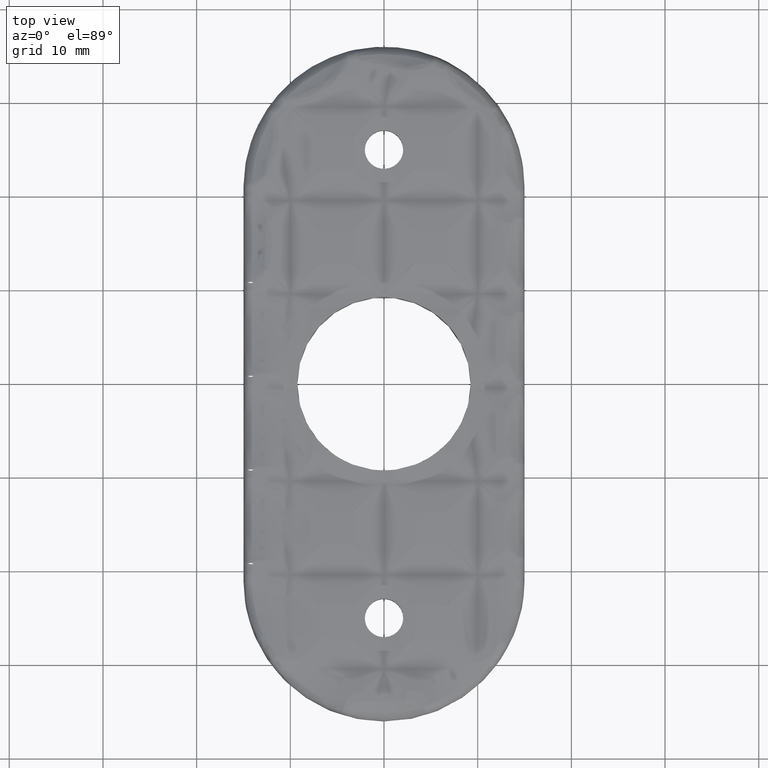
[diagram: clean part render]
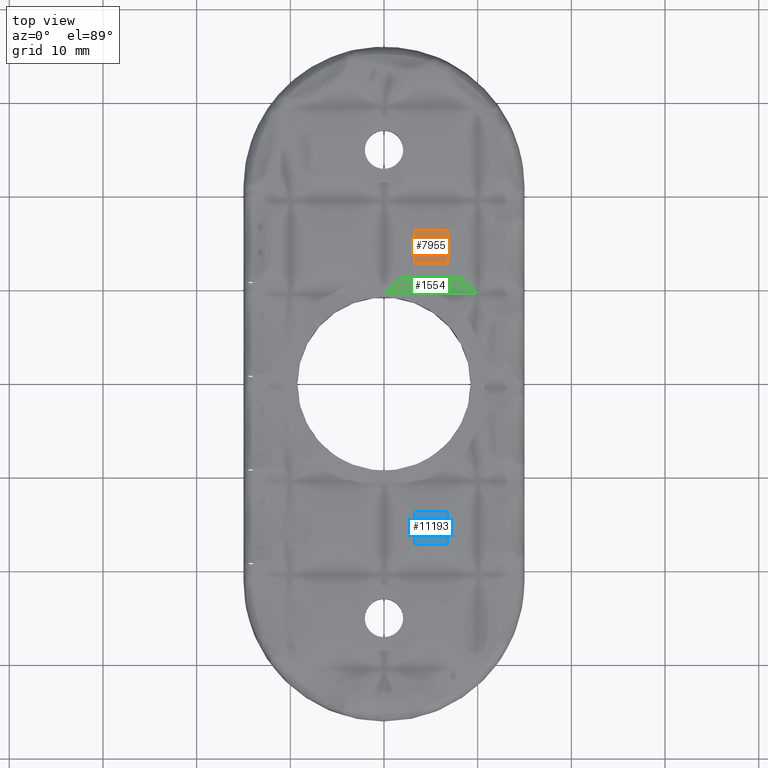
[diagram: same view with three faces highlighted in distinct colors, each labeled with its STEP entity id]
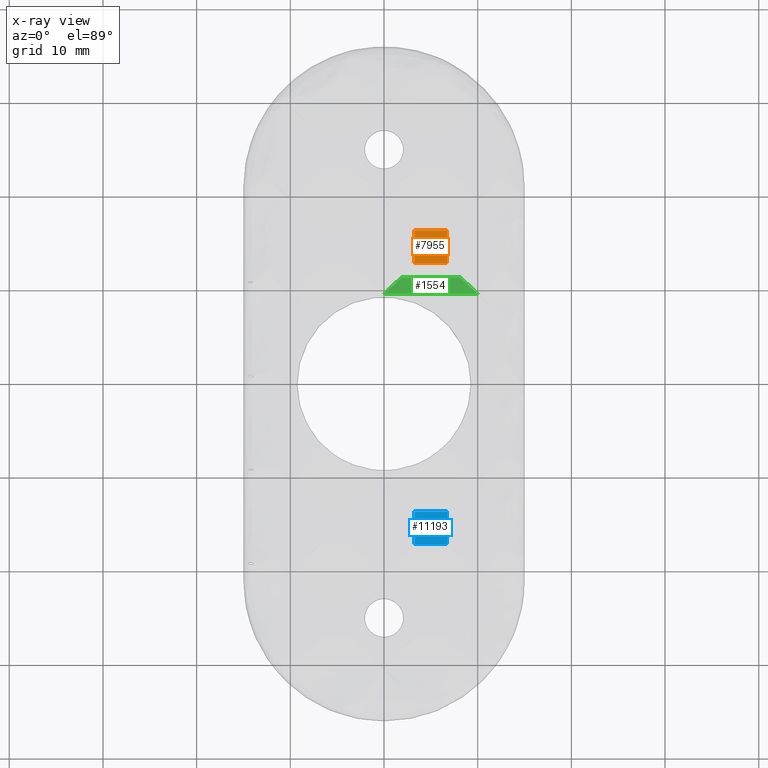
[diagram: x-ray of the same camera — body ghosted, the three highlighted faces saturated]
A machine part, top view with three faces highlighted in distinct colors.
The next image is the same camera in x-ray (body ghosted, the three faces saturated) — at least one of them is partly hidden behind the body in this view.
Their STEP definitions:

[orange] entity #7955 — the highlighted planar face has unit normal (0, 0, 1).
#152 = LINE ( 'NONE', #20796, #16090 ) ;
#376 = CARTESIAN_POINT ( 'NONE',  ( 6.726049786572795100, 20.99999999999999600, 3.500000000000000000 ) ) ;
#454 = DIRECTION ( 'NONE',  ( -0.0000000000000000000, 1.000000000000000000, 0.0000000000000000000 ) ) ;
#725 = EDGE_CURVE ( 'NONE', #15309, #17995, #152, .T. ) ;
#785 = CARTESIAN_POINT ( 'NONE',  ( -2.507294680206831200E-015, 16.34285370310250900, 3.500000000000000000 ) ) ;
#1253 = CARTESIAN_POINT ( 'NONE',  ( -2.507294680206831200E-015, 20.99999999999999600, 3.500000000000000000 ) ) ;
#1805 = EDGE_CURVE ( 'NONE', #13890, #16241, #9882, .T. ) ;
#3329 = DIRECTION ( 'NONE',  ( 0.0000000000000000000, 0.0000000000000000000, 1.000000000000000000 ) ) ;
#4156 = LINE ( 'NONE', #10347, #20778 ) ;
#4399 = CARTESIAN_POINT ( 'NONE',  ( 3.273950213427200900, 16.34285370310251300, 3.500000000000000000 ) ) ;
#4838 = ORIENTED_EDGE ( 'NONE', *, *, #10026, .T. ) ;
#5020 = LINE ( 'NONE', #785, #10572 ) ;
#6039 = CARTESIAN_POINT ( 'NONE',  ( 3.273950213427204000, 12.89075412995689800, 3.499999999999999600 ) ) ;
#6894 = ORIENTED_EDGE ( 'NONE', *, *, #725, .T. ) ;
#7204 = CARTESIAN_POINT ( 'NONE',  ( 6.726049786572794200, 16.34285370310251300, 3.499999999999999600 ) ) ;
#7299 = CARTESIAN_POINT ( 'NONE',  ( 6.726049786572793300, 12.89075412995689800, 3.499999999999999600 ) ) ;
#7955 = ADVANCED_FACE ( 'NONE', ( #12586 ), #17833, .T. ) ;
#9882 = LINE ( 'NONE', #376, #15411 ) ;
#10026 = EDGE_CURVE ( 'NONE', #16241, #15309, #5020, .T. ) ;
#10347 = CARTESIAN_POINT ( 'NONE',  ( -15.00000000000000000, 12.89075412995690200, 3.499999999999998700 ) ) ;
#10572 = VECTOR ( 'NONE', #17447, 1000.000000000000000 ) ;
#12032 = AXIS2_PLACEMENT_3D ( 'NONE', #1253, #3329, #17925 ) ;
#12432 = DIRECTION ( 'NONE',  ( -1.000000000000000000, -0.0000000000000000000, -0.0000000000000000000 ) ) ;
#12586 = FACE_OUTER_BOUND ( 'NONE', #19158, .T. ) ;
#13890 = VERTEX_POINT ( 'NONE', #7299 ) ;
#14510 = DIRECTION ( 'NONE',  ( 0.0000000000000000000, -1.000000000000000000, -0.0000000000000000000 ) ) ;
#15309 = VERTEX_POINT ( 'NONE', #4399 ) ;
#15411 = VECTOR ( 'NONE', #454, 1000.000000000000000 ) ;
#16090 = VECTOR ( 'NONE', #14510, 1000.000000000000000 ) ;
#16241 = VERTEX_POINT ( 'NONE', #7204 ) ;
#17115 = ORIENTED_EDGE ( 'NONE', *, *, #1805, .T. ) ;
#17447 = DIRECTION ( 'NONE',  ( -1.000000000000000000, -0.0000000000000000000, 0.0000000000000000000 ) ) ;
#17833 = PLANE ( 'NONE',  #12032 ) ;
#17925 = DIRECTION ( 'NONE',  ( 1.000000000000000000, 0.0000000000000000000, -0.0000000000000000000 ) ) ;
#17995 = VERTEX_POINT ( 'NONE', #6039 ) ;
#19158 = EDGE_LOOP ( 'NONE', ( #17115, #4838, #6894, #25210 ) ) ;
#20778 = VECTOR ( 'NONE', #12432, 1000.000000000000000 ) ;
#20796 = CARTESIAN_POINT ( 'NONE',  ( 3.273950213427204500, 20.99999999999999600, 3.500000000000000000 ) ) ;
#21104 = EDGE_CURVE ( 'NONE', #13890, #17995, #4156, .T. ) ;
#25210 = ORIENTED_EDGE ( 'NONE', *, *, #21104, .F. ) ;

[blue] entity #11193 — the highlighted planar face has unit normal (0, 0, 1).
#7 = LINE ( 'NONE', #17849, #16610 ) ;
#586 = ORIENTED_EDGE ( 'NONE', *, *, #13154, .T. ) ;
#1415 = PLANE ( 'NONE',  #10281 ) ;
#1729 = DIRECTION ( 'NONE',  ( 0.0000000000000000000, -1.000000000000000000, -0.0000000000000000000 ) ) ;
#2356 = DIRECTION ( 'NONE',  ( -0.0000000000000000000, 1.000000000000000000, 0.0000000000000000000 ) ) ;
#3181 = DIRECTION ( 'NONE',  ( 1.000000000000000000, 0.0000000000000000000, 0.0000000000000000000 ) ) ;
#4242 = EDGE_CURVE ( 'NONE', #23310, #22911, #8396, .T. ) ;
#8396 = LINE ( 'NONE', #25166, #19480 ) ;
#10140 = VERTEX_POINT ( 'NONE', #14449 ) ;
#10281 = AXIS2_PLACEMENT_3D ( 'NONE', #20185, #24406, #11875 ) ;
#11193 = ADVANCED_FACE ( 'NONE', ( #19625 ), #1415, .T. ) ;
#11317 = DIRECTION ( 'NONE',  ( 1.000000000000000000, 0.0000000000000000000, -0.0000000000000000000 ) ) ;
#11875 = DIRECTION ( 'NONE',  ( 1.000000000000000000, 0.0000000000000000000, -0.0000000000000000000 ) ) ;
#12093 = CARTESIAN_POINT ( 'NONE',  ( 3.273950213427204500, 20.99999999999999600, 3.500000000000000000 ) ) ;
#13154 = EDGE_CURVE ( 'NONE', #10140, #23310, #15345, .T. ) ;
#14020 = VECTOR ( 'NONE', #1729, 1000.000000000000000 ) ;
#14449 = CARTESIAN_POINT ( 'NONE',  ( 3.273950213427204000, -17.10924587004310700, 3.499999999999999600 ) ) ;
#15345 = LINE ( 'NONE', #25750, #25176 ) ;
#16610 = VECTOR ( 'NONE', #3181, 1000.000000000000000 ) ;
#16931 = CARTESIAN_POINT ( 'NONE',  ( 6.726049786572793300, -13.65714629689749400, 3.499999999999999600 ) ) ;
#17117 = VERTEX_POINT ( 'NONE', #17879 ) ;
#17849 = CARTESIAN_POINT ( 'NONE',  ( -15.00000000000000000, -13.65714629689749200, 3.499999999999998700 ) ) ;
#17879 = CARTESIAN_POINT ( 'NONE',  ( 3.273950213427203600, -13.65714629689749200, 3.499999999999999600 ) ) ;
#18436 = EDGE_CURVE ( 'NONE', #17117, #10140, #19542, .T. ) ;
#19480 = VECTOR ( 'NONE', #2356, 1000.000000000000000 ) ;
#19542 = LINE ( 'NONE', #12093, #14020 ) ;
#19625 = FACE_OUTER_BOUND ( 'NONE', #21087, .T. ) ;
#20185 = CARTESIAN_POINT ( 'NONE',  ( -2.507294680206831200E-015, 20.99999999999999600, 3.500000000000000000 ) ) ;
#21087 = EDGE_LOOP ( 'NONE', ( #21728, #24496, #25397, #586 ) ) ;
#21728 = ORIENTED_EDGE ( 'NONE', *, *, #4242, .T. ) ;
#22911 = VERTEX_POINT ( 'NONE', #16931 ) ;
#23310 = VERTEX_POINT ( 'NONE', #25139 ) ;
#24406 = DIRECTION ( 'NONE',  ( 0.0000000000000000000, 0.0000000000000000000, 1.000000000000000000 ) ) ;
#24496 = ORIENTED_EDGE ( 'NONE', *, *, #26786, .F. ) ;
#25139 = CARTESIAN_POINT ( 'NONE',  ( 6.726049786572794200, -17.10924587004310700, 3.500000000000000000 ) ) ;
#25166 = CARTESIAN_POINT ( 'NONE',  ( 6.726049786572795100, 20.99999999999999600, 3.500000000000000000 ) ) ;
#25176 = VECTOR ( 'NONE', #11317, 1000.000000000000000 ) ;
#25397 = ORIENTED_EDGE ( 'NONE', *, *, #18436, .T. ) ;
#25750 = CARTESIAN_POINT ( 'NONE',  ( -2.507294680206831200E-015, -17.10924587004310700, 3.500000000000000000 ) ) ;
#26786 = EDGE_CURVE ( 'NONE', #17117, #22911, #7, .T. ) ;

[green] entity #1554 — the highlighted cylindrical surface (partial cylindrical patch) has radius 11.5625 mm, axis along (1, 0, 0).
#1554 = ADVANCED_FACE ( 'NONE', ( #18032 ), #6273, .F. ) ;
#2482 = ORIENTED_EDGE ( 'NONE', *, *, #25752, .F. ) ;
#3340 = CARTESIAN_POINT ( 'NONE',  ( 8.092568137101695300, 11.37240040835117000, 3.384057971101042600 ) ) ;
#3582 = CARTESIAN_POINT ( 'NONE',  ( 1.907431863474979000, 11.37240040778776200, 3.384057971014494000 ) ) ;
#4501 = CARTESIAN_POINT ( 'NONE',  ( -2.557238623579196600E-008, 9.616803888749732500, 3.250000000000002700 ) ) ;
#5430 = CARTESIAN_POINT ( 'NONE',  ( 10.00000000000000500, 9.616803916529701000, 3.250000000000002700 ) ) ;
#5484 = VECTOR ( 'NONE', #13787, 1000.000000000000000 ) ;
#6273 = CYLINDRICAL_SURFACE ( 'NONE', #17009, 11.56249999999999600 ) ;
#6356 = B_SPLINE_CURVE_WITH_KNOTS ( 'NONE', 3,
 ( #11629, #18019, #9723, #24323 ),
 .UNSPECIFIED., .F., .F.,
 ( 4, 4 ),
 ( 0.0000000000000000000, 1.000000000000000000 ),
 .UNSPECIFIED. ) ;
#8314 = EDGE_CURVE ( 'NONE', #9001, #13253, #6356, .T. ) ;
#8651 = CARTESIAN_POINT ( 'NONE',  ( 10.00000000000000500, 9.616803916529701000, 3.250000000000002700 ) ) ;
#9001 = VERTEX_POINT ( 'NONE', #4501 ) ;
#9050 = LINE ( 'NONE', #18338, #13962 ) ;
#9723 = CARTESIAN_POINT ( 'NONE',  ( 1.276549066830198200, 10.79173713724403400, 3.294858551025007500 ) ) ;
#9907 = B_SPLINE_CURVE_WITH_KNOTS ( 'NONE', 3,
 ( #3340, #15813, #17940, #5430 ),
 .UNSPECIFIED., .F., .F.,
 ( 4, 4 ),
 ( 0.0000000000000000000, 1.000000000000000000 ),
 .UNSPECIFIED. ) ;
#11031 = LINE ( 'NONE', #19960, #5484 ) ;
#11629 = CARTESIAN_POINT ( 'NONE',  ( -2.557238623579196600E-008, 9.616803888749732500, 3.250000000000002700 ) ) ;
#12591 = VERTEX_POINT ( 'NONE', #8651 ) ;
#13253 = VERTEX_POINT ( 'NONE', #3582 ) ;
#13787 = DIRECTION ( 'NONE',  ( 1.000000000000000000, 0.0000000000000000000, 0.0000000000000000000 ) ) ;
#13962 = VECTOR ( 'NONE', #16318, 1000.000000000000000 ) ;
#14922 = EDGE_LOOP ( 'NONE', ( #18552, #24856, #2482, #15371 ) ) ;
#15371 = ORIENTED_EDGE ( 'NONE', *, *, #19126, .F. ) ;
#15813 = CARTESIAN_POINT ( 'NONE',  ( 8.723450933169397500, 10.79173713724360300, 3.294858551024940000 ) ) ;
#16318 = DIRECTION ( 'NONE',  ( 1.000000000000000000, 0.0000000000000000000, 0.0000000000000000000 ) ) ;
#17009 = AXIS2_PLACEMENT_3D ( 'NONE', #20494, #20663, #20396 ) ;
#17940 = CARTESIAN_POINT ( 'NONE',  ( 9.361715183507513400, 10.20427999141087300, 3.250000000000003600 ) ) ;
#18019 = CARTESIAN_POINT ( 'NONE',  ( 0.6382848164913962300, 10.20427999141208100, 3.250000000000003600 ) ) ;
#18032 = FACE_OUTER_BOUND ( 'NONE', #14922, .T. ) ;
#18338 = CARTESIAN_POINT ( 'NONE',  ( -15.00000000000000000, 9.616803916529702800, 3.250000000000002700 ) ) ;
#18552 = ORIENTED_EDGE ( 'NONE', *, *, #8314, .F. ) ;
#19126 = EDGE_CURVE ( 'NONE', #13253, #20730, #11031, .T. ) ;
#19960 = CARTESIAN_POINT ( 'NONE',  ( -15.00000000000000000, 11.37240040778776500, 3.384057971014495800 ) ) ;
#20177 = EDGE_CURVE ( 'NONE', #9001, #12591, #9050, .T. ) ;
#20396 = DIRECTION ( 'NONE',  ( 0.0000000000000000000, 0.0000000000000000000, -1.000000000000000000 ) ) ;
#20494 = CARTESIAN_POINT ( 'NONE',  ( -15.00000000000000000, 9.616803916529702800, 14.81250000000000000 ) ) ;
#20663 = DIRECTION ( 'NONE',  ( 1.000000000000000000, 0.0000000000000000000, 0.0000000000000000000 ) ) ;
#20730 = VERTEX_POINT ( 'NONE', #22980 ) ;
#22980 = CARTESIAN_POINT ( 'NONE',  ( 8.092568137101695300, 11.37240040835117000, 3.384057971101042600 ) ) ;
#24323 = CARTESIAN_POINT ( 'NONE',  ( 1.907431863474979000, 11.37240040778776200, 3.384057971014494000 ) ) ;
#24856 = ORIENTED_EDGE ( 'NONE', *, *, #20177, .T. ) ;
#25752 = EDGE_CURVE ( 'NONE', #20730, #12591, #9907, .T. ) ;